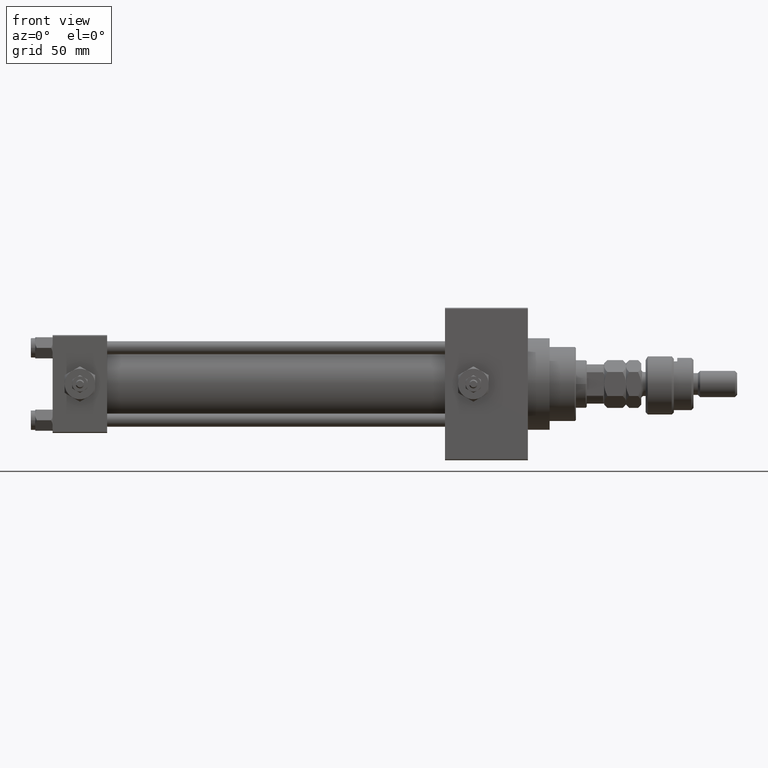
[diagram: clean part render]
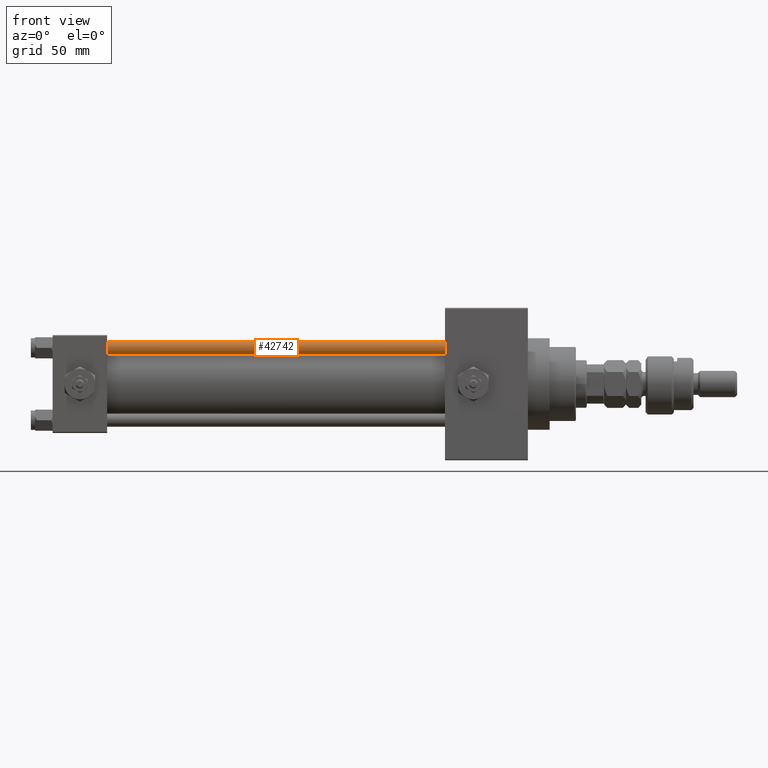
[diagram: same view with one face highlighted and labeled with its STEP entity id]
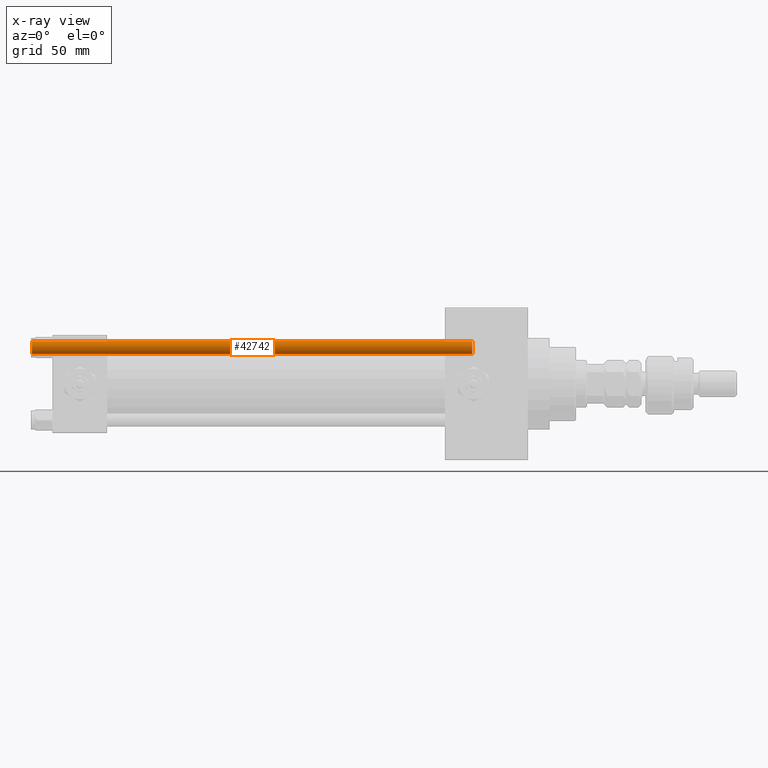
[diagram: x-ray of the same camera — body ghosted, the highlighted face saturated]
A machine part, front view. The second image highlights one B-rep face of the part: STEP entity #42742.
The next image is the same camera in x-ray: the body ghosted, the highlighted face saturated — about 0% of this face is hidden behind the body in this view.
In plain terms, the highlighted cylindrical surface (edge-blend (fillet) strip) has radius 3 mm, axis along (1, 0, 0).
Its self-contained STEP definition (entity closure, byte-faithful):
#642 = VERTEX_POINT ( 'NONE', #9997 ) ;
#3205 = DIRECTION ( 'NONE',  ( 1.000000000000000000, 0.000000000000000000, 0.000000000000000000 ) ) ;
#3462 = CARTESIAN_POINT ( 'NONE',  ( 3.000000000000000444, 3.673940397442059868E-16, 203.0000000000000000 ) ) ;
#5133 = ORIENTED_EDGE ( 'NONE', *, *, #29396, .T. ) ;
#7564 = ORIENTED_EDGE ( 'NONE', *, *, #15196, .T. ) ;
#8779 = CARTESIAN_POINT ( 'NONE',  ( -3.000000000000000444, 0.000000000000000000, 0.5000000000001114664 ) ) ;
#9997 = CARTESIAN_POINT ( 'NONE',  ( 3.000000000000000444, 3.673940397442059868E-16, 202.5000000000000853 ) ) ;
#10560 = DIRECTION ( 'NONE',  ( 0.000000000000000000, 0.000000000000000000, -1.000000000000000000 ) ) ;
#10998 = FACE_OUTER_BOUND ( 'NONE', #26668, .T. ) ;
#11260 = DIRECTION ( 'NONE',  ( -1.000000000000000000, 0.000000000000000000, 0.000000000000000000 ) ) ;
#11665 = VERTEX_POINT ( 'NONE', #13827 ) ;
#12660 = CARTESIAN_POINT ( 'NONE',  ( -3.000000000000000444, 0.000000000000000000, 203.0000000000000000 ) ) ;
#13827 = CARTESIAN_POINT ( 'NONE',  ( 3.000000000000000444, 3.673940397442059868E-16, 0.5000000000001114664 ) ) ;
#15196 = EDGE_CURVE ( 'NONE', #642, #11665, #39415, .T. ) ;
#16031 = AXIS2_PLACEMENT_3D ( 'NONE', #51538, #31857, #23732 ) ;
#19646 = CYLINDRICAL_SURFACE ( 'NONE', #41216, 3.000000000000000444 ) ;
#22739 = ORIENTED_EDGE ( 'NONE', *, *, #25389, .F. ) ;
#23688 = CIRCLE ( 'NONE', #51329, 3.000000000000000444 ) ;
#23732 = DIRECTION ( 'NONE',  ( 1.000000000000000000, 0.000000000000000000, 0.000000000000000000 ) ) ;
#25389 = EDGE_CURVE ( 'NONE', #37449, #45590, #28650, .T. ) ;
#26668 = EDGE_LOOP ( 'NONE', ( #34104, #7564, #5133, #22739 ) ) ;
#27251 = DIRECTION ( 'NONE',  ( -0.000000000000000000, -0.000000000000000000, -1.000000000000000000 ) ) ;
#28650 = LINE ( 'NONE', #12660, #35962 ) ;
#29393 = CIRCLE ( 'NONE', #16031, 3.000000000000000444 ) ;
#29396 = EDGE_CURVE ( 'NONE', #11665, #45590, #29393, .T. ) ;
#31857 = DIRECTION ( 'NONE',  ( -0.000000000000000000, -0.000000000000000000, 1.000000000000000000 ) ) ;
#31877 = CARTESIAN_POINT ( 'NONE',  ( -3.000000000000000444, 0.000000000000000000, 202.5000000000000853 ) ) ;
#34104 = ORIENTED_EDGE ( 'NONE', *, *, #47749, .T. ) ;
#35393 = CARTESIAN_POINT ( 'NONE',  ( 0.000000000000000000, 0.000000000000000000, 203.0000000000000000 ) ) ;
#35962 = VECTOR ( 'NONE', #51748, 1000.000000000000000 ) ;
#37449 = VERTEX_POINT ( 'NONE', #31877 ) ;
#39409 = CARTESIAN_POINT ( 'NONE',  ( 0.000000000000000000, 0.000000000000000000, 202.5000000000000853 ) ) ;
#39415 = LINE ( 'NONE', #3462, #45749 ) ;
#41216 = AXIS2_PLACEMENT_3D ( 'NONE', #35393, #27251, #11260 ) ;
#42742 = ADVANCED_FACE ( 'NONE', ( #10998 ), #19646, .T. ) ;
#45590 = VERTEX_POINT ( 'NONE', #8779 ) ;
#45749 = VECTOR ( 'NONE', #47557, 1000.000000000000000 ) ;
#47557 = DIRECTION ( 'NONE',  ( -0.000000000000000000, -0.000000000000000000, -1.000000000000000000 ) ) ;
#47749 = EDGE_CURVE ( 'NONE', #37449, #642, #23688, .T. ) ;
#51329 = AXIS2_PLACEMENT_3D ( 'NONE', #39409, #10560, #3205 ) ;
#51538 = CARTESIAN_POINT ( 'NONE',  ( 0.000000000000000000, 0.000000000000000000, 0.5000000000001114664 ) ) ;
#51748 = DIRECTION ( 'NONE',  ( -0.000000000000000000, -0.000000000000000000, -1.000000000000000000 ) ) ;